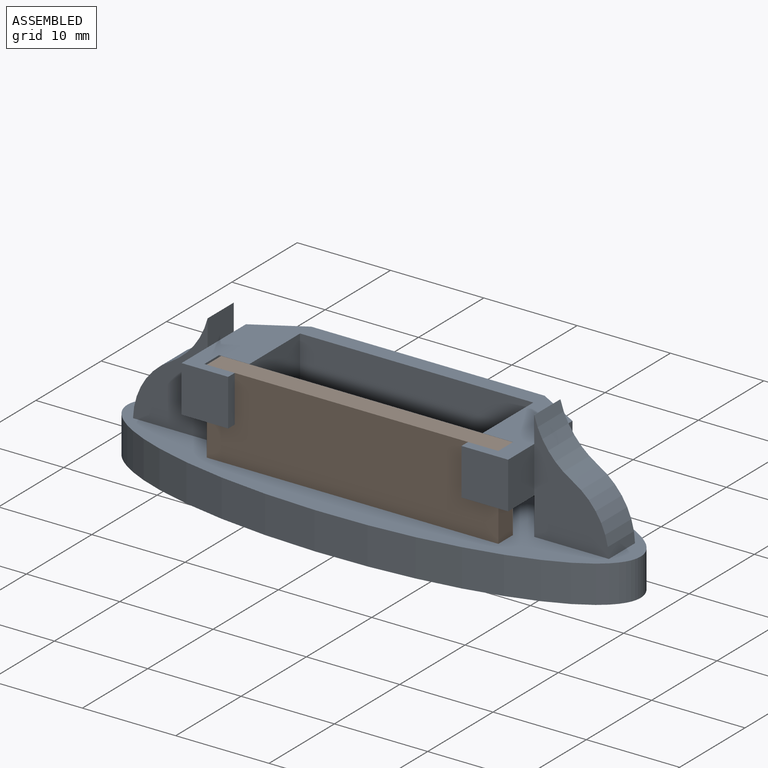
[diagram: assembled view]
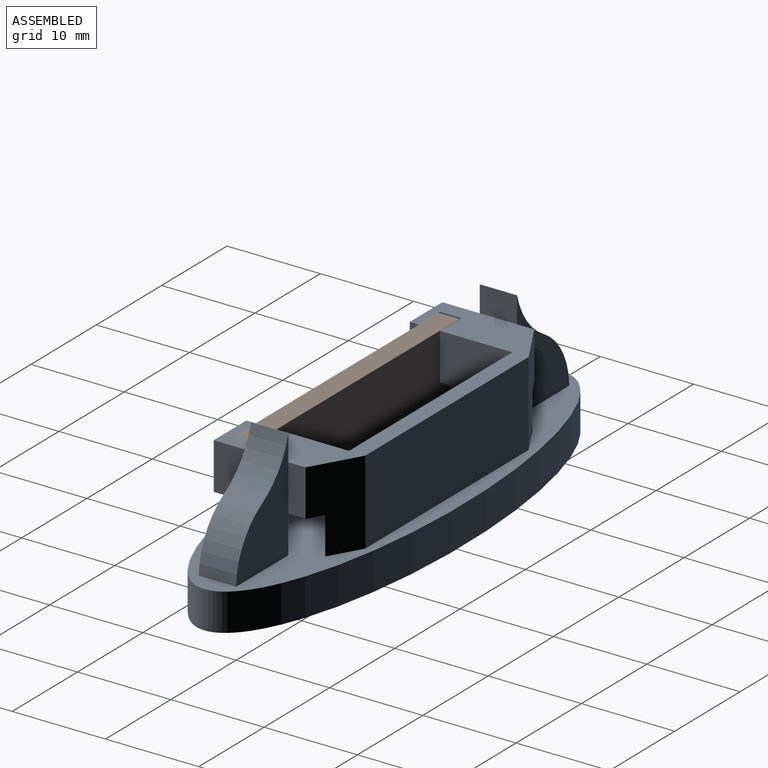
[diagram: assembled view, second angle]
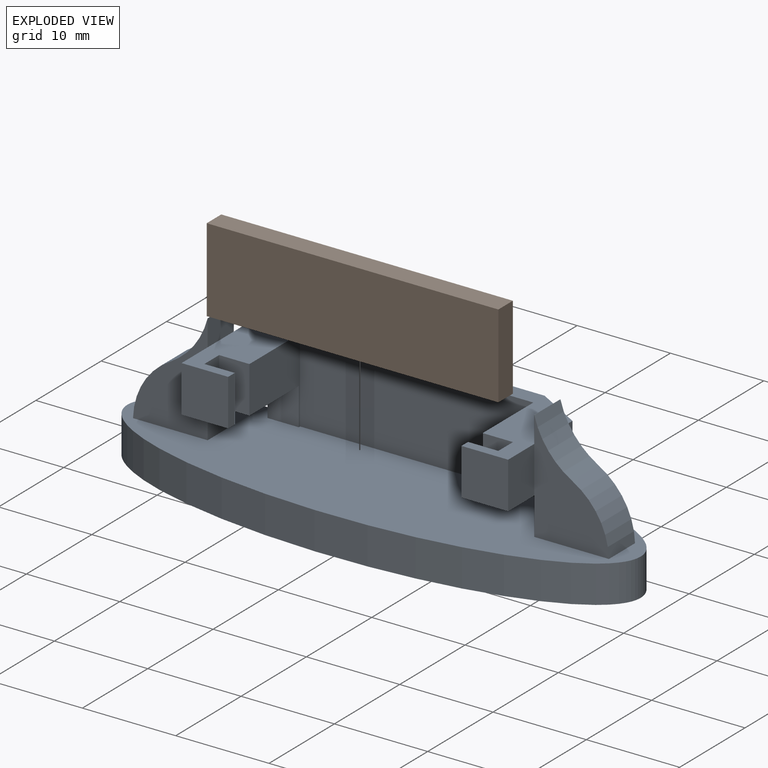
[diagram: exploded view]
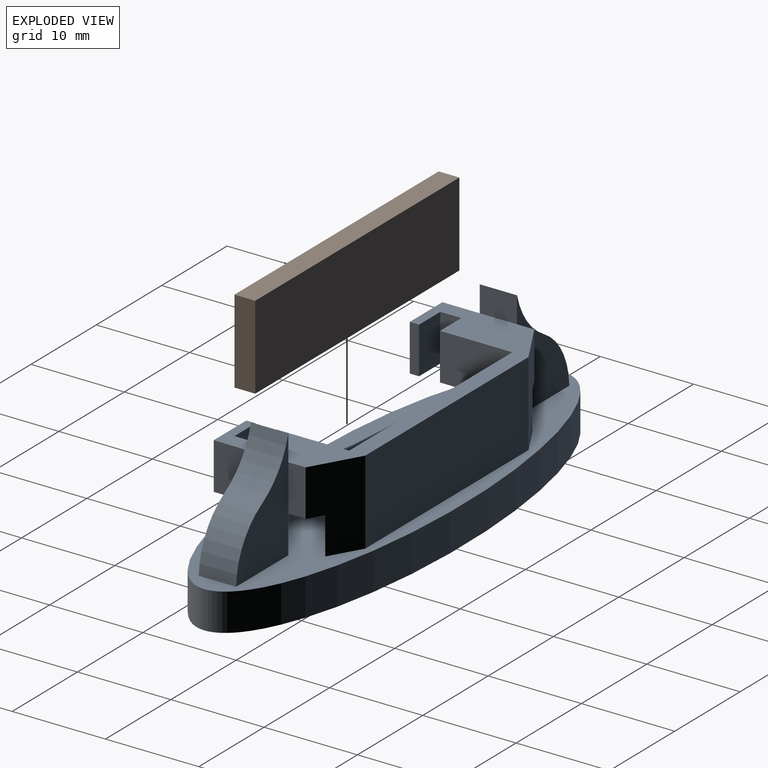
[diagram: exploded view, second angle]
ASSEMBLY  parts=2 mates=3
PART A: 40 faces, bbox 55x17x15.8 mm
  f0: plane 5x1mm, normal (1,0,0), area 5mm2, adj f2,f9,f21,f35
  f1: plane 5x1mm, normal (-1,0,0), area 5mm2, adj f2,f3,f10,f37
  f2: plane 35x12.73mm, normal (0,0,1), area 141.6mm2, adj f0,f1,f4,f5,f7,f8,f9,f10
  f3: plane 10.8x5mm, normal (0,0,-1), area 45.9mm2, adj f1,f4,f7,f10,f13,f18,f19,f28
  f4: plane 5x4mm, normal (1,0,0), area 20mm2, adj f2,f3,f10,f32
  f5: plane 5x4mm, normal (-1,0,0), area 20mm2, adj f2,f9,f21,f26
  f6: plane 55x17mm, normal (0,0,1), area 620.6mm2, adj f11,f13,f14,f15,f16,f17,f18,f19
  f7: plane 5x1.85mm, normal (1,0,0), area 9.2mm2, adj f2,f3,f13,f33
  f8: plane 5x1.85mm, normal (-1,0,0), area 9.2mm2, adj f2,f15,f21,f27
  f9: plane 5x5mm, normal (0,-1,0), area 25mm2, adj f0,f2,f5,f21
  f10: plane 5x5mm, normal (0,-1,0), area 25mm2, adj f1,f2,f3,f4
  f11: extruded ~55x17mm, area 484.7mm2, adj f6,f12
  f12: plane 55x17mm, normal (0,0,-1), area 734.3mm2, adj f11
  f13: plane 9x5mm, normal (0.5,0.87,0), area 44.3mm2, adj f2,f3,f6,f7,f14,f19
  f14: plane 25x9mm, normal (0,1,0), area 225mm2, adj f2,f6,f13,f15
  f15: plane 9x5mm, normal (-0.5,0.87,0), area 44.3mm2, adj f2,f6,f8,f14,f20,f21
  f16: plane 9x7.75mm, normal (1,0,0), area 39.5mm2, adj f2,f6,f17,f20,f21,f34
  f17: plane 25x9mm, normal (0,-1,0), area 225mm2, adj f2,f6,f16,f18
  f18: plane 9x7.75mm, normal (-1,0,0), area 39.5mm2, adj f2,f3,f6,f17,f19,f39
  f19: plane 4x3.35mm, normal (0,-1,0), area 13.4mm2, adj f3,f6,f13,f18
  f20: plane 4x3.35mm, normal (0,-1,0), area 13.4mm2, adj f6,f15,f16,f21
  f21: plane 10.8x5mm, normal (0,0,-1), area 45.9mm2, adj f0,f5,f8,f9,f15,f16,f20,f22
  f22: plane 4x4mm, normal (1,0,0), area 16mm2, adj f6,f21,f26,f27
  f23: plane 4x2.81mm, normal (1,0,0), area 11.2mm2, adj f2,f24,f26,f27
  f24: cylinder r=8.56mm len=5.3mm, axis (0,1,0), area 27.4mm2, adj f23,f25,f26,f27
  f25: cylinder r=7.72mm len=6.51mm, axis (0,1,0), area 31.8mm2, adj f6,f24,f26,f27
  f26: plane 11.81x8mm, normal (0,-1,0), area 52.1mm2, adj f5,f6,f22,f23,f24,f25
  f27: plane 11.81x8mm, normal (0,1,0), area 52.1mm2, adj f6,f8,f22,f23,f24,f25
  f28: plane 4x4mm, normal (-1,0,0), area 16mm2, adj f3,f6,f32,f33
  f29: plane 4x2.81mm, normal (-1,0,0), area 11.2mm2, adj f2,f31,f32,f33
  f30: cylinder r=7.72mm len=6.51mm, axis (0,1,0), area 31.8mm2, adj f6,f31,f32,f33
  f31: cylinder r=8.56mm len=5.3mm, axis (0,1,0), area 27.4mm2, adj f29,f30,f32,f33
  f32: plane 11.81x8mm, normal (0,-1,0), area 52.1mm2, adj f4,f6,f28,f29,f30,f31
  f33: plane 11.81x8mm, normal (0,1,0), area 52.1mm2, adj f6,f7,f28,f29,f30,f31
  f34: plane 5x3.25mm, normal (0,-1,0), area 16.2mm2, adj f2,f16,f21,f36
  f35: plane 5x3.25mm, normal (0,1,0), area 16.2mm2, adj f0,f2,f21,f36
  f36: plane 5x2.25mm, normal (1,0,0), area 11.2mm2, adj f2,f21,f34,f35
  f37: plane 5x3.25mm, normal (0,1,0), area 16.2mm2, adj f1,f2,f3,f38
  f38: plane 5x2.25mm, normal (-1,0,0), area 11.2mm2, adj f2,f3,f37,f39
  f39: plane 5x3.25mm, normal (0,-1,0), area 16.2mm2, adj f2,f3,f18,f38
PART B: 6 faces, bbox 31.3x2.2x9 mm
  f0: plane 9x2.23mm, normal (1,0,0), area 20mm2, adj f1,f3,f4,f5
  f1: plane 31.25x9mm, normal (0,1,0), area 281.2mm2, adj f0,f2,f4,f5
  f2: plane 9x2.23mm, normal (-1,0,0), area 20mm2, adj f1,f3,f4,f5
  f3: plane 31.25x9mm, normal (0,-1,0), area 281.2mm2, adj f0,f2,f4,f5
  f4: plane 31.25x2.23mm, normal (0,0,1), area 69.5mm2, adj f0,f1,f2,f3
  f5: plane 31.25x2.23mm, normal (0,0,-1), area 69.5mm2, adj f0,f1,f2,f3
PLACE A t=(-9.38,-4.72,-6.86)mm fixed
PLACE B t=(-9.25,-8.61,-2.86)mm
MATE planar B.f5 <-> A.f6  axis (0,0,-1) through (-9.25,-8.61,-2.86)mm
MATE planar B.f0 <-> A.f38  axis (1,0,0) through (6.37,-8.61,1.64)mm
MATE planar B.f3 <-> A.f35  axis (0,-1,0) through (-9.25,-9.72,1.64)mm
